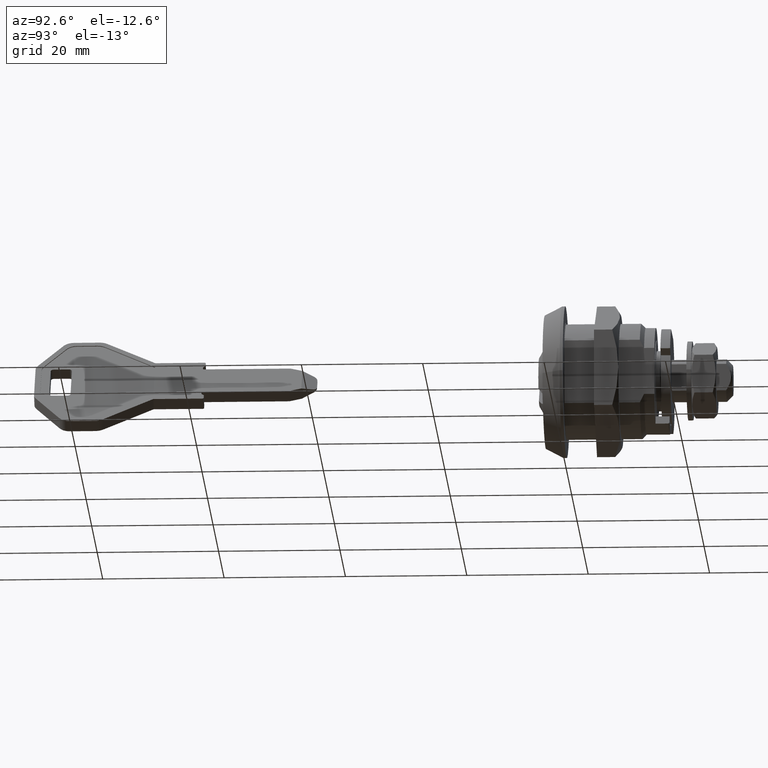
[diagram: clean part render]
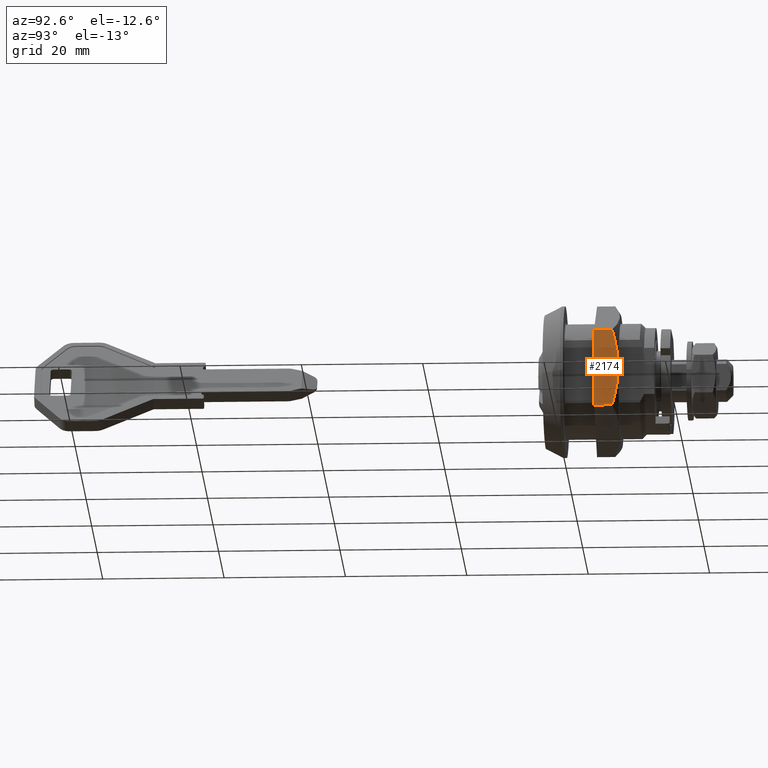
[diagram: same view with one face highlighted and labeled with its STEP entity id]
A machine part, auxiliary view. The second image highlights one B-rep face of the part: STEP entity #2174.
In plain terms, the highlighted face is a freeform B-spline surface patch.
Its self-contained STEP definition (entity closure, byte-faithful):
#1671=CARTESIAN_POINT('',(10.999999999887240,9.100000000000001,5.650236E-011));
#1672=VERTEX_POINT('',#1671);
#1767=CARTESIAN_POINT('',(11.0,8.100000000000001,6.350852960894760));
#1768=VERTEX_POINT('',#1767);
#1784=CARTESIAN_POINT('',(11.0,8.099999999999994,6.350852960894758));
#1785=CARTESIAN_POINT('',(11.0,8.401462337485903,5.324852470848157));
#1786=CARTESIAN_POINT('',(11.0,8.652682955622005,4.285063948571703));
#1787=CARTESIAN_POINT('',(11.0,8.871835585685084,2.959291886842392));
#1788=CARTESIAN_POINT('',(11.0,8.930435657049785,2.559599240982237));
#1789=CARTESIAN_POINT('',(11.0,8.977387205511576,2.156709845263725));
#1790=CARTESIAN_POINT('',(11.0,9.006001460117751,1.887379571834973));
#1791=CARTESIAN_POINT('',(11.0,9.018977871052982,1.752183272025608));
#1792=CARTESIAN_POINT('',(11.0,9.076715880065940,1.076642464619361));
#1793=CARTESIAN_POINT('',(11.0,9.099969917690309,0.537959367591277));
#1794=CARTESIAN_POINT('',(11.0,9.099999990159105,0.000698504954602));
#1795=CARTESIAN_POINT('',(11.0,9.099999999885256,0.000349252385787));
#1796=CARTESIAN_POINT('',(11.0,9.099999999788878,5.662185E-010));
#1797=B_SPLINE_CURVE_WITH_KNOTS('',3,(#1784,#1785,#1786,#1787,#1788,#1789,#1790,#1791,#1792,#1793,#1794,#1795,#1796),.UNSPECIFIED.,.F.,.U.,(4,2,1,2,2,2,4),(0.499918689288883,0.749918689288883,0.812418689288883,0.843668689288883,0.874918689288883,0.999918689288883,1.0),.UNSPECIFIED.);
#1798=EDGE_CURVE('',#1768,#1672,#1797,.T.);
#1818=CARTESIAN_POINT('',(10.999999999735920,8.100000000000001,-6.350852961239140));
#1819=VERTEX_POINT('',#1818);
#1820=CARTESIAN_POINT('',(10.999999999887240,9.100000000000001,5.650236E-011));
#1821=CARTESIAN_POINT('',(11.0,9.099999851707395,-0.536560053568045));
#1822=CARTESIAN_POINT('',(11.0,9.076816012702281,-1.071351693048135));
#1823=CARTESIAN_POINT('',(11.0,8.986353217443430,-2.137920720307929));
#1824=CARTESIAN_POINT('',(11.0,8.919078464375808,-2.669698428699824));
#1825=CARTESIAN_POINT('',(11.0,8.788516500486402,-3.465103350242956));
#1826=CARTESIAN_POINT('',(11.0,8.740068341973966,-3.729862462123927));
#1827=CARTESIAN_POINT('',(11.0,8.634003280544086,-4.258681309003242));
#1828=CARTESIAN_POINT('',(11.0,8.576359642056580,-4.522859275729594));
#1829=CARTESIAN_POINT('',(11.0,8.390935069002950,-5.313688071306189));
#1830=CARTESIAN_POINT('',(11.0,8.251652999751279,-5.834715345211293));
#1831=CARTESIAN_POINT('',(11.0,8.099999999879628,-6.350852961191566));
#1832=B_SPLINE_CURVE_WITH_KNOTS('',3,(#1820,#1821,#1822,#1823,#1824,#1825,#1826,#1827,#1828,#1829,#1830,#1831),.UNSPECIFIED.,.F.,.U.,(4,2,2,2,2,4),(0.0,0.124918689250963,0.249918689250963,0.312418689250963,0.374918689250963,0.499918689250962),.UNSPECIFIED.);
#1833=EDGE_CURVE('',#1672,#1819,#1832,.T.);
#2075=CARTESIAN_POINT('',(11.0,5.099999999999994,-6.350852961074370));
#2076=VERTEX_POINT('',#2075);
#2082=CARTESIAN_POINT('',(10.999999999990040,5.099999999999994,6.350852961092101));
#2083=VERTEX_POINT('',#2082);
#2084=CARTESIAN_POINT('',(10.999999999990040,5.099999999999994,6.350852961092101));
#2085=CARTESIAN_POINT('',(11.0,5.099999999999994,-6.350852961074370));
#2086=QUASI_UNIFORM_CURVE('',1,(#2084,#2085),.UNSPECIFIED.,.F.,.U.);
#2087=EDGE_CURVE('',#2083,#2076,#2086,.T.);
#2147=CARTESIAN_POINT('',(10.999999999735920,8.100000000000001,-6.350852961239140));
#2148=CARTESIAN_POINT('',(11.0,5.099999999999994,-6.350852961074370));
#2149=QUASI_UNIFORM_CURVE('',1,(#2147,#2148),.UNSPECIFIED.,.F.,.U.);
#2150=EDGE_CURVE('',#1819,#2076,#2149,.T.);
#2158=CARTESIAN_POINT('',(11.0,4.900200007752773,-6.985303147441216));
#2159=CARTESIAN_POINT('',(11.0,4.900200007752773,6.985303487980477));
#2160=CARTESIAN_POINT('',(11.0,9.299800099535581,-6.985303147441216));
#2161=CARTESIAN_POINT('',(11.0,9.299800099535581,6.985303487980477));
#2162=B_SPLINE_SURFACE_WITH_KNOTS('',1,1,((#2158,#2160),(#2159,#2161)),.UNSPECIFIED.,.F.,.F.,.U.,(2,2),(2,2),(0.0,13.970606635421690),(0.0,4.399600091782808),.UNSPECIFIED.);
#2163=ORIENTED_EDGE('',*,*,#1798,.F.);
#2164=CARTESIAN_POINT('',(11.0,8.100000000000001,6.350852960894760));
#2165=CARTESIAN_POINT('',(10.999999999990040,5.099999999999994,6.350852961092101));
#2166=QUASI_UNIFORM_CURVE('',1,(#2164,#2165),.UNSPECIFIED.,.F.,.U.);
#2167=EDGE_CURVE('',#1768,#2083,#2166,.T.);
#2168=ORIENTED_EDGE('',*,*,#2167,.T.);
#2169=ORIENTED_EDGE('',*,*,#2087,.T.);
#2170=ORIENTED_EDGE('',*,*,#2150,.F.);
#2171=ORIENTED_EDGE('',*,*,#1833,.F.);
#2172=EDGE_LOOP('',(#2163,#2168,#2169,#2170,#2171));
#2173=FACE_OUTER_BOUND('',#2172,.T.);
#2174=ADVANCED_FACE('',(#2173),#2162,.F.);